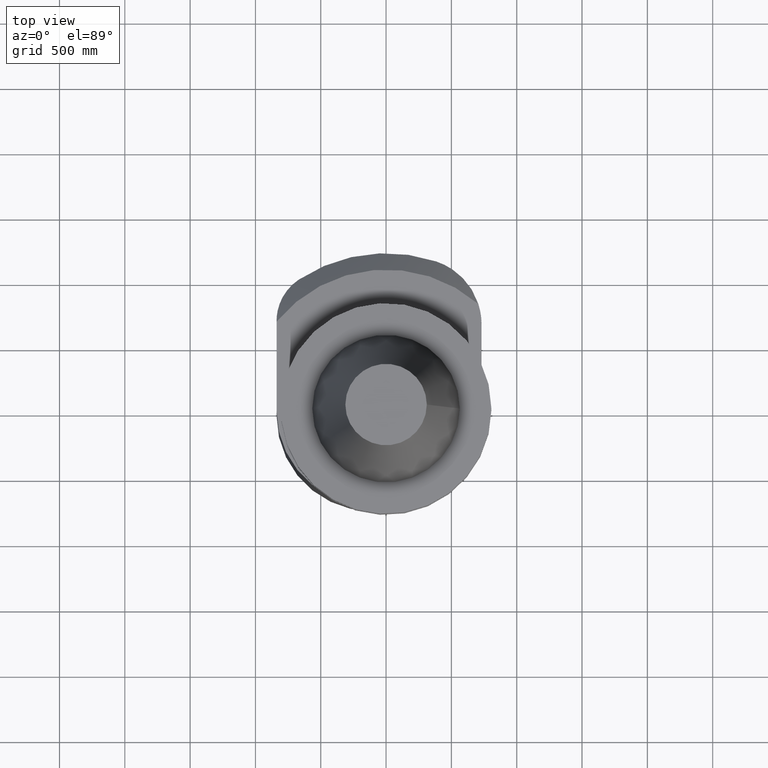
[diagram: clean part render]
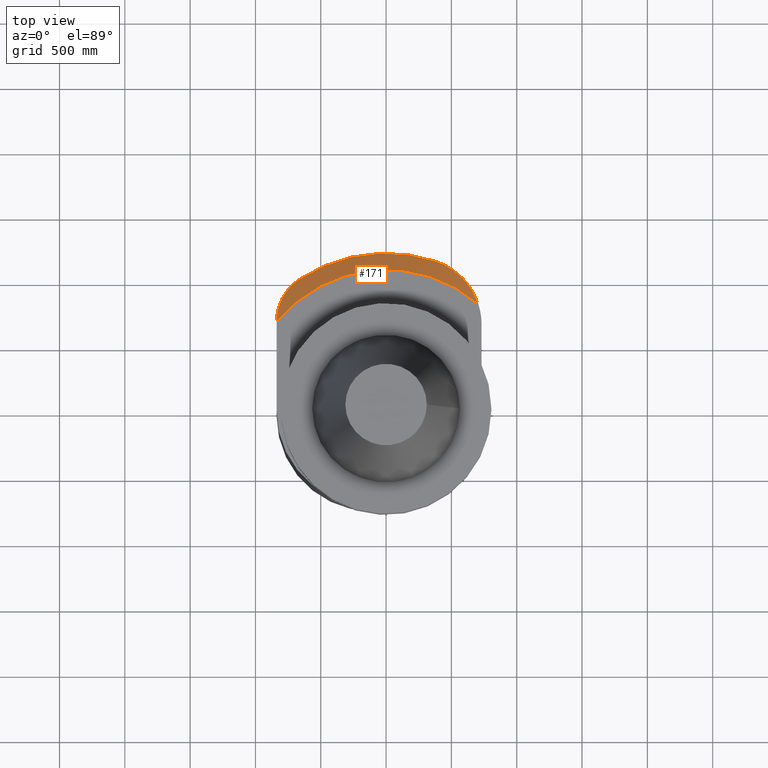
[diagram: same view with one face highlighted and labeled with its STEP entity id]
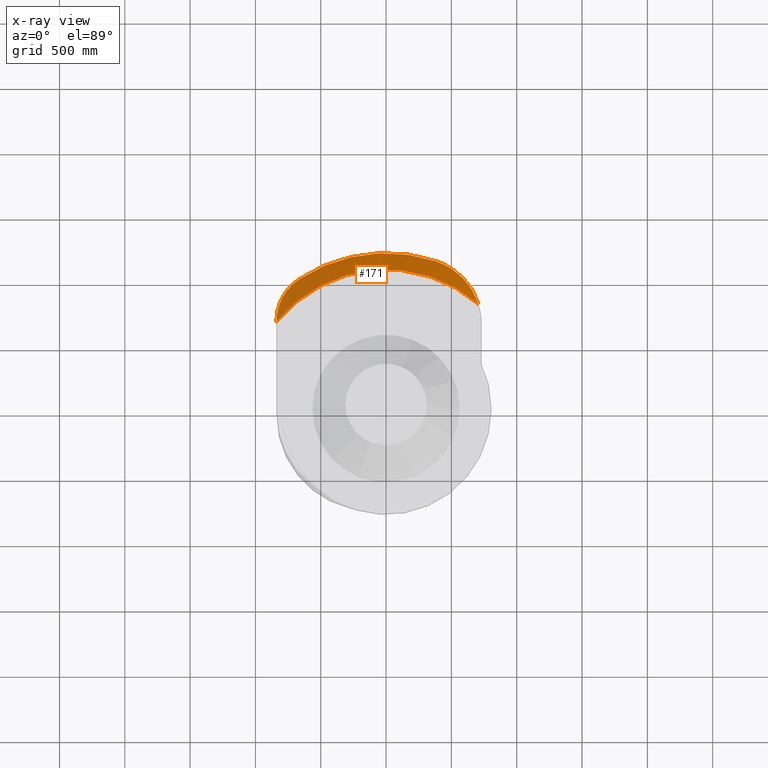
[diagram: x-ray of the same camera — body ghosted, the highlighted face saturated]
A machine part, top view. The second image highlights one B-rep face of the part: STEP entity #171.
The next image is the same camera in x-ray: the body ghosted, the highlighted face saturated — about 0% of this face is hidden behind the body in this view.
In plain terms, the highlighted conical surface has half-angle 45 deg.
Its self-contained STEP definition (entity closure, byte-faithful):
#112=EDGE_CURVE('Unnamed[1]',#328,#329,#330,.T.);
#137=EDGE_CURVE('Unnamed[1]',#368,#369,#370,.T.);
#149=EDGE_CURVE('Unnamed[1]',#388,#328,#389,.T.);
#171=ADVANCED_FACE('Unnamed[1]',(#416),#417,.T.);
#210=EDGE_CURVE('Unnamed[1]',#368,#329,#474,.T.);
#244=EDGE_CURVE('Unnamed[1]',#369,#388,#520,.T.);
#328=VERTEX_POINT('',#615);
#329=VERTEX_POINT('',#616);
#330=B_SPLINE_CURVE_WITH_KNOTS('',3,(#617,#618,#619,#620,#621,#622,#623,#624,#625,#626,#627,#628,#629,#630,#631,#632,#633,#634,#635,#636),.UNSPECIFIED.,.F.,.F.,(4,2,2,2,2,2,2,2,2,4),(0.0,2.73601369672958,5.47202739345916,8.20804109018874,10.9440547869183,13.3538272272021,15.7635996674858,18.1733721077696,20.5831445480533,22.9929169883371),.UNSPECIFIED.);
#368=VERTEX_POINT('',#688);
#369=VERTEX_POINT('',#689);
#370=B_SPLINE_CURVE_WITH_KNOTS('',3,(#690,#691,#692,#693,#694,#695,#696,#697,#698,#699,#700,#701,#702,#703,#704,#705,#706,#707,#708,#709),.UNSPECIFIED.,.F.,.F.,(4,2,2,2,2,2,2,2,2,4),(15.0413319300748,16.9656011800084,18.8898704299421,20.8141396798757,22.7384089298094,24.662678179743,26.9798092248115,29.2969402698799,31.6140713149484,33.9312023600168),.UNSPECIFIED.);
#388=VERTEX_POINT('',#733);
#389=CIRCLE('',#734,42.4999999999998);
#416=FACE_OUTER_BOUND('',#773,.T.);
#417=CONICAL_SURFACE('',#774,44.9999999999999,0.785398163397465);
#474=CIRCLE('',#850,47.5);
#520=(B_SPLINE_CURVE(2,(#913,#914,#915),.UNSPECIFIED.,.F.,.F.)B_SPLINE_CURVE_WITH_KNOTS((3,3),(0.0,8.91823131307148),.UNSPECIFIED.)RATIONAL_B_SPLINE_CURVE((1.0,1.00338228800787,1.0))BOUNDED_CURVE()REPRESENTATION_ITEM('')GEOMETRIC_REPRESENTATION_ITEM()CURVE());
#615=CARTESIAN_POINT('',(27.8065653048593,32.1410162556596,-34.9999999999997));
#616=CARTESIAN_POINT('',(15.1136363636375,45.0314112133712,-39.9999999999998));
#617=CARTESIAN_POINT('',(28.282390122873,30.3703211859472,-33.9999999999997));
#618=CARTESIAN_POINT('',(28.1119271033199,31.1447244821374,-34.4505488002944));
#619=CARTESIAN_POINT('',(27.8849066979622,31.9534526312038,-34.9032119188623));
#620=CARTESIAN_POINT('',(27.3047630489517,33.585524215328,-35.7779244698648));
#621=CARTESIAN_POINT('',(26.9515381624498,34.4088228788505,-36.1999900215929));
#622=CARTESIAN_POINT('',(26.1244866414643,36.0179542840406,-36.9872842901648));
#623=CARTESIAN_POINT('',(25.6502464083434,36.8043792200914,-37.3528469032119));
#624=CARTESIAN_POINT('',(24.6059566811896,38.2944140300158,-38.010390625103));
#625=CARTESIAN_POINT('',(24.0358463098918,38.9979743957241,-38.3023872367762));
#626=CARTESIAN_POINT('',(22.9170813084686,40.209061563594,-38.7754164417215));
#627=CARTESIAN_POINT('',(22.3326083772937,40.7747964638638,-38.9829903027441));
#628=CARTESIAN_POINT('',(21.0624928919904,41.8536171706142,-39.3475489323946));
#629=CARTESIAN_POINT('',(20.3768057875874,42.3666504685003,-39.504533871585));
#630=CARTESIAN_POINT('',(18.9378363390834,43.3029031110859,-39.7552852247496));
#631=CARTESIAN_POINT('',(18.1838644241218,43.7265257318236,-39.8491697138538));
#632=CARTESIAN_POINT('',(16.6525207343038,44.4629896521465,-39.9715260996952));
#633=CARTESIAN_POINT('',(15.8751483193491,44.775829287887,-39.9999999999998));
#634=CARTESIAN_POINT('',(14.3521244079236,45.2869931388562,-39.9999999999998));
#635=CARTESIAN_POINT('',(13.5434203107204,45.5064793397651,-39.9715260996952));
#636=CARTESIAN_POINT('',(12.7106299339937,45.6747301614633,-39.9103479067745));
#688=CARTESIAN_POINT('',(-26.3076923076926,39.5494036041479,-40.0));
#689=CARTESIAN_POINT('',(-33.0,27.0601182554633,-35.1761057267372));
#690=CARTESIAN_POINT('',(-24.5887572530291,40.535587741193,-39.910345461432));
#691=CARTESIAN_POINT('',(-25.1954604105209,40.2389435438512,-39.9713749634699));
#692=CARTESIAN_POINT('',(-25.7736312465787,39.9046533118282,-40.0));
#693=CARTESIAN_POINT('',(-26.8417533688058,39.1941538964681,-40.0));
#694=CARTESIAN_POINT('',(-27.3735326250306,38.7901213513152,-39.9713749634699));
#695=CARTESIAN_POINT('',(-28.3897063305004,37.9003253045606,-39.8493159593942));
#696=CARTESIAN_POINT('',(-28.8741108184272,37.4145725327186,-39.7558873483392));
#697=CARTESIAN_POINT('',(-29.7651159342269,36.3898051086313,-39.5078123094618));
#698=CARTESIAN_POINT('',(-30.1722574027567,35.850242593674,-39.35303419252));
#699=CARTESIAN_POINT('',(-30.8930040724432,34.7543097107664,-38.995607817661));
#700=CARTESIAN_POINT('',(-31.206671893074,34.1979773107651,-38.7929694186086));
#701=CARTESIAN_POINT('',(-31.7923322796305,33.0015939128421,-38.3191557475923));
#702=CARTESIAN_POINT('',(-32.0713058296027,32.3092618798027,-38.0193854925312));
#703=CARTESIAN_POINT('',(-32.5222319306768,30.8889478824454,-37.3484120768558));
#704=CARTESIAN_POINT('',(-32.6942867199844,30.1609978163682,-36.977210107385));
#705=CARTESIAN_POINT('',(-32.9266475465135,28.7132110524871,-36.1833223543783));
#706=CARTESIAN_POINT('',(-32.9871574416223,27.9927741387305,-35.7602898487477));
#707=CARTESIAN_POINT('',(-33.0091130945925,26.6004887120801,-34.8897660379062));
#708=CARTESIAN_POINT('',(-32.9706624670409,25.9286457173909,-34.4422685234581));
#709=CARTESIAN_POINT('',(-32.8963516166482,25.2998033651217,-33.9999999999998));
#733=CARTESIAN_POINT('',(-32.9999999999999,26.7815234816839,-34.9999999999998));
#734=AXIS2_PLACEMENT_3D('',#1095,#1096,#1097);
#773=EDGE_LOOP('',(#1137,#1138,#1139,#1140,#1141));
#774=AXIS2_PLACEMENT_3D('',#1142,#1143,#1144);
#850=AXIS2_PLACEMENT_3D('',#1221,#1222,#1223);
#913=CARTESIAN_POINT('',(-33.000000000003,34.1650406117101,-39.9999999999998));
#914=CARTESIAN_POINT('',(-33.0000000000013,30.2681843486409,-37.1971315266144));
#915=CARTESIAN_POINT('',(-32.9999999999999,26.781523481684,-34.9999999999998));
#1095=CARTESIAN_POINT('',(4.2862637970157E-015,-2.14313189850785E-015,-34.9999999999997));
#1096=DIRECTION('',(1.22464679914735E-016,-6.12323399573677E-017,-1.0));
#1097=DIRECTION('',(1.0,-1.83697019872103E-016,1.22464679914735E-016));
#1137=ORIENTED_EDGE('',*,*,#112,.T.);
#1138=ORIENTED_EDGE('',*,*,#210,.F.);
#1139=ORIENTED_EDGE('',*,*,#137,.T.);
#1140=ORIENTED_EDGE('',*,*,#244,.T.);
#1141=ORIENTED_EDGE('',*,*,#149,.T.);
#1142=CARTESIAN_POINT('',(4.59242549680255E-015,-2.29621274840127E-015,-37.4999999999998));
#1143=DIRECTION('',(1.22464679914735E-016,-6.12323399573677E-017,-1.0));
#1144=DIRECTION('',(1.0,-1.83697019872103E-016,1.22464679914735E-016));
#1221=CARTESIAN_POINT('',(4.89858719658939E-015,-2.4492935982947E-015,-39.9999999999998));
#1222=DIRECTION('',(1.22464679914735E-016,-6.12323399573677E-017,-1.0));
#1223=DIRECTION('',(1.0,-1.83697019872103E-016,1.22464679914735E-016));